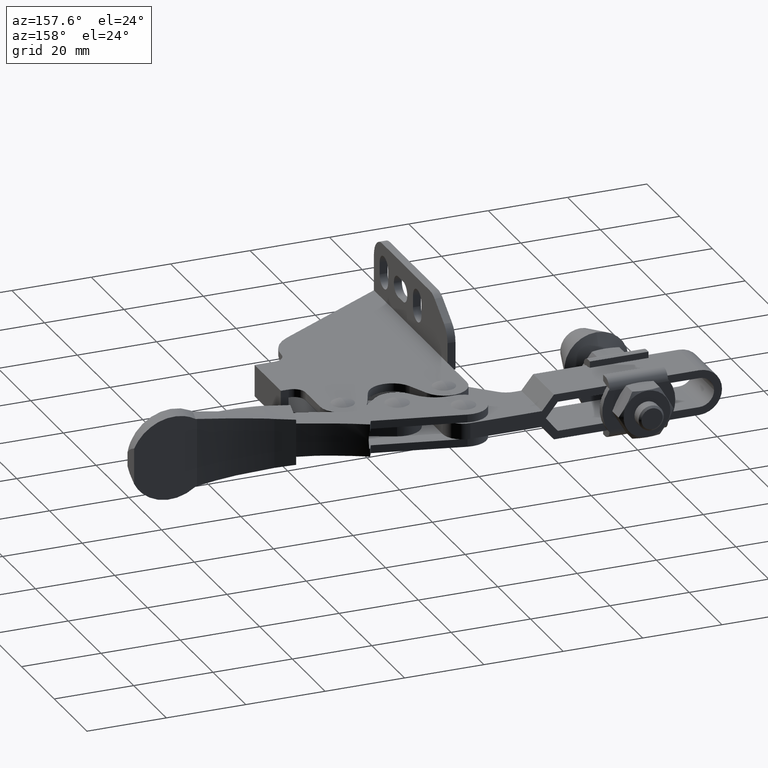
[diagram: clean part render]
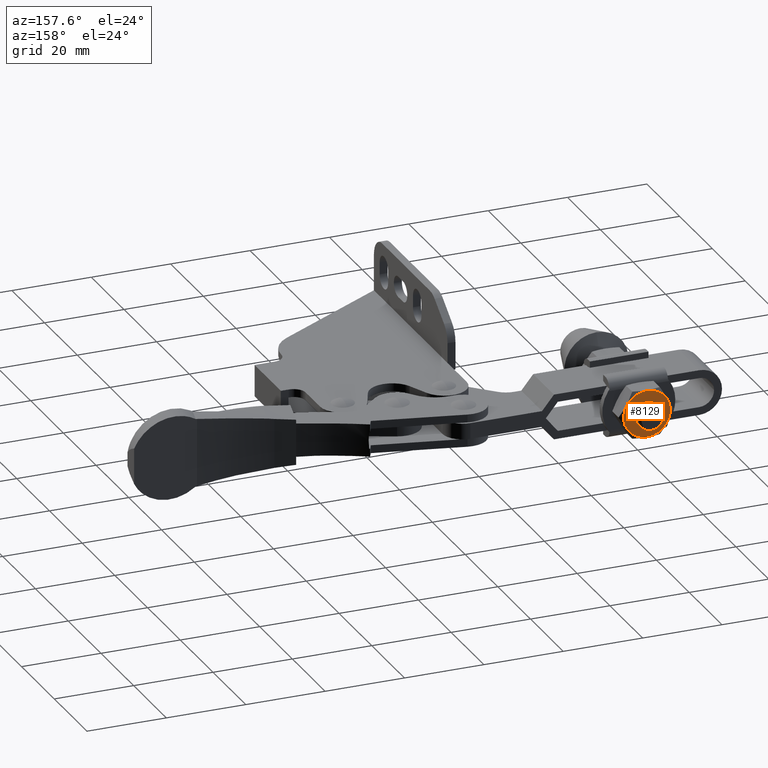
[diagram: same view with one face highlighted and labeled with its STEP entity id]
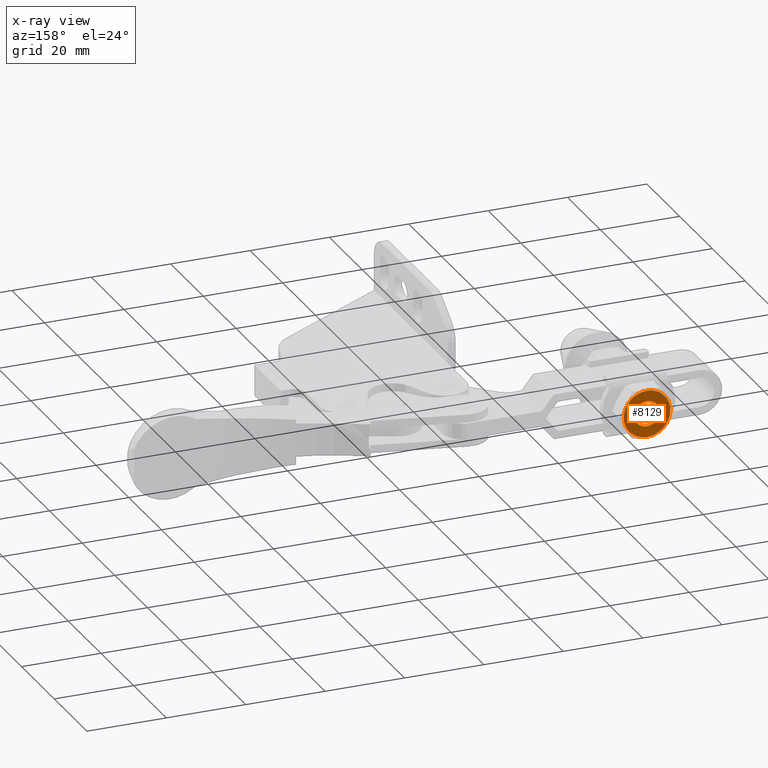
[diagram: x-ray of the same camera — body ghosted, the highlighted face saturated]
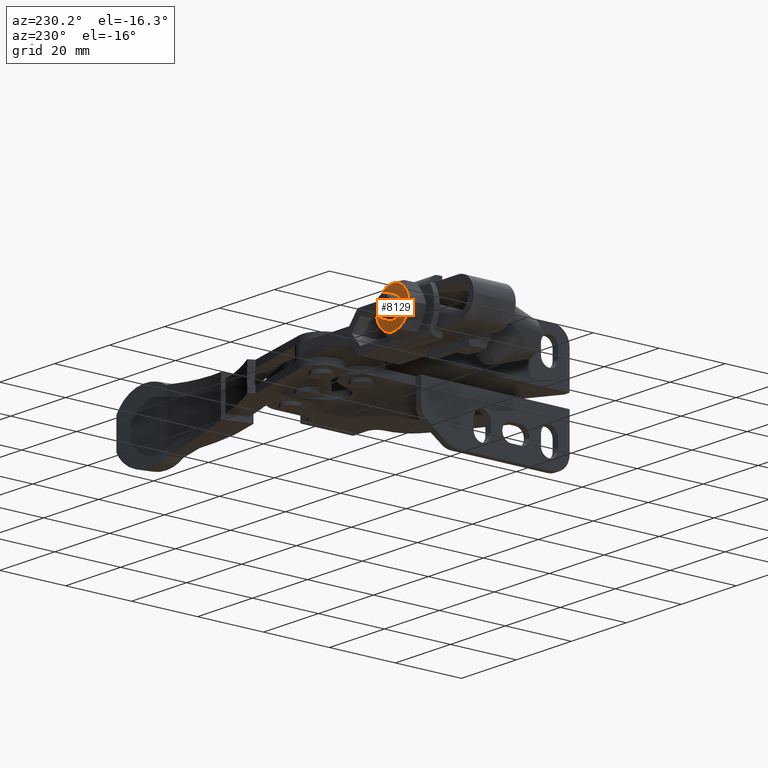
[diagram: same view with one face highlighted and labeled with its STEP entity id]
A machine part, auxiliary view. The second image highlights one B-rep face of the part: STEP entity #8129.
The next image is the same camera in x-ray: the body ghosted, the highlighted face saturated — about 0% of this face is hidden behind the body in this view.
A second angle (auxiliary view) of the same face is appended — the face is thin or edge-on in the first view.
In plain terms, the highlighted planar face has unit normal (-0, 1, 0).
Its self-contained STEP definition (entity closure, byte-faithful):
#87 = PLANE ( 'NONE',  #9112 ) ;
#476 = DIRECTION ( 'NONE',  ( -4.949599757830822500E-015, 1.000000000000000000, 1.200404189451665000E-016 ) ) ;
#712 = EDGE_LOOP ( 'NONE', ( #4464, #4169 ) ) ;
#1004 = DIRECTION ( 'NONE',  ( -4.949599757830822500E-015, 1.000000000000000000, 1.200404189451663100E-016 ) ) ;
#1148 = EDGE_CURVE ( 'NONE', #7560, #5166, #10314, .T. ) ;
#1447 = DIRECTION ( 'NONE',  ( 0.0000000000000000000, 0.0000000000000000000, -1.000000000000000000 ) ) ;
#1464 = CARTESIAN_POINT ( 'NONE',  ( -72.27204002719213300, 44.37999999999981800, 1.175000000000246500 ) ) ;
#1795 = DIRECTION ( 'NONE',  ( -4.949599757830822500E-015, 1.000000000000000000, 1.200404189451665000E-016 ) ) ;
#1850 = EDGE_LOOP ( 'NONE', ( #9544, #4832 ) ) ;
#2205 = DIRECTION ( 'NONE',  ( -4.949599757830822500E-015, 1.000000000000000000, 1.200404189451665000E-016 ) ) ;
#2599 = FACE_OUTER_BOUND ( 'NONE', #1850, .T. ) ;
#2662 = AXIS2_PLACEMENT_3D ( 'NONE', #2765, #2205, #1447 ) ;
#2765 = CARTESIAN_POINT ( 'NONE',  ( -72.27334486409878900, 44.37999999999985300, -1.999999999999752900 ) ) ;
#3100 = EDGE_CURVE ( 'NONE', #7666, #7826, #9597, .T. ) ;
#3144 = CARTESIAN_POINT ( 'NONE',  ( -72.27204002719213300, 44.37999999999981800, -5.174999999999758200 ) ) ;
#3300 = EDGE_CURVE ( 'NONE', #5166, #7560, #7367, .T. ) ;
#4169 = ORIENTED_EDGE ( 'NONE', *, *, #6604, .F. ) ;
#4464 = ORIENTED_EDGE ( 'NONE', *, *, #3100, .F. ) ;
#4718 = DIRECTION ( 'NONE',  ( -1.000000000000000000, -4.370956789862825100E-015, 0.0000000000000000000 ) ) ;
#4832 = ORIENTED_EDGE ( 'NONE', *, *, #1148, .T. ) ;
#4893 = FACE_BOUND ( 'NONE', #712, .T. ) ;
#5166 = VERTEX_POINT ( 'NONE', #10480 ) ;
#5646 = DIRECTION ( 'NONE',  ( -1.000000000000000000, -4.370956789862825100E-015, 0.0000000000000000000 ) ) ;
#5861 = DIRECTION ( 'NONE',  ( 0.0000000000000000000, 0.0000000000000000000, -1.000000000000000000 ) ) ;
#6057 = CARTESIAN_POINT ( 'NONE',  ( -72.27334486409878900, 44.37999999999985300, -1.999999999999752900 ) ) ;
#6150 = CARTESIAN_POINT ( 'NONE',  ( -79.20154809437430300, 44.37999999999978200, -1.999999999999749300 ) ) ;
#6498 = CARTESIAN_POINT ( 'NONE',  ( -72.27204002719213300, 44.37999999999981800, -1.999999999999755500 ) ) ;
#6604 = EDGE_CURVE ( 'NONE', #7826, #7666, #9772, .T. ) ;
#6986 = DIRECTION ( 'NONE',  ( -7.989646398686249500E-020, 1.200404189451663100E-016, -1.000000000000000000 ) ) ;
#7367 = CIRCLE ( 'NONE', #7859, 5.900000000000001200 ) ;
#7560 = VERTEX_POINT ( 'NONE', #7996 ) ;
#7666 = VERTEX_POINT ( 'NONE', #3144 ) ;
#7826 = VERTEX_POINT ( 'NONE', #1464 ) ;
#7859 = AXIS2_PLACEMENT_3D ( 'NONE', #6057, #1795, #5861 ) ;
#7996 = CARTESIAN_POINT ( 'NONE',  ( -72.27334486409878900, 44.37999999999985300, 3.900000000000249500 ) ) ;
#8129 = ADVANCED_FACE ( 'NONE', ( #4893, #2599 ), #87, .T. ) ;
#9112 = AXIS2_PLACEMENT_3D ( 'NONE', #6150, #1004, #6986 ) ;
#9529 = CARTESIAN_POINT ( 'NONE',  ( -72.27204002719213300, 44.37999999999981800, -1.999999999999755500 ) ) ;
#9544 = ORIENTED_EDGE ( 'NONE', *, *, #3300, .T. ) ;
#9597 = CIRCLE ( 'NONE', #10107, 3.174999999999997200 ) ;
#9772 = CIRCLE ( 'NONE', #10636, 3.174999999999997200 ) ;
#9934 = DIRECTION ( 'NONE',  ( -4.949599757830822500E-015, 1.000000000000000000, 1.200404189451665000E-016 ) ) ;
#10107 = AXIS2_PLACEMENT_3D ( 'NONE', #9529, #9934, #4718 ) ;
#10314 = CIRCLE ( 'NONE', #2662, 5.900000000000001200 ) ;
#10480 = CARTESIAN_POINT ( 'NONE',  ( -72.27334486409878900, 44.37999999999985300, -7.899999999999754300 ) ) ;
#10636 = AXIS2_PLACEMENT_3D ( 'NONE', #6498, #476, #5646 ) ;